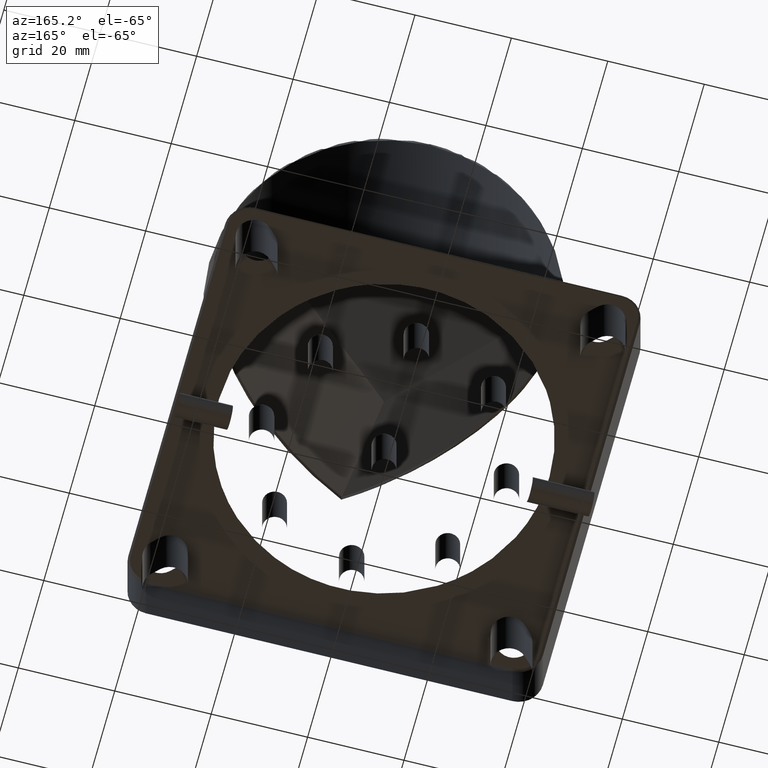
[diagram: clean part render]
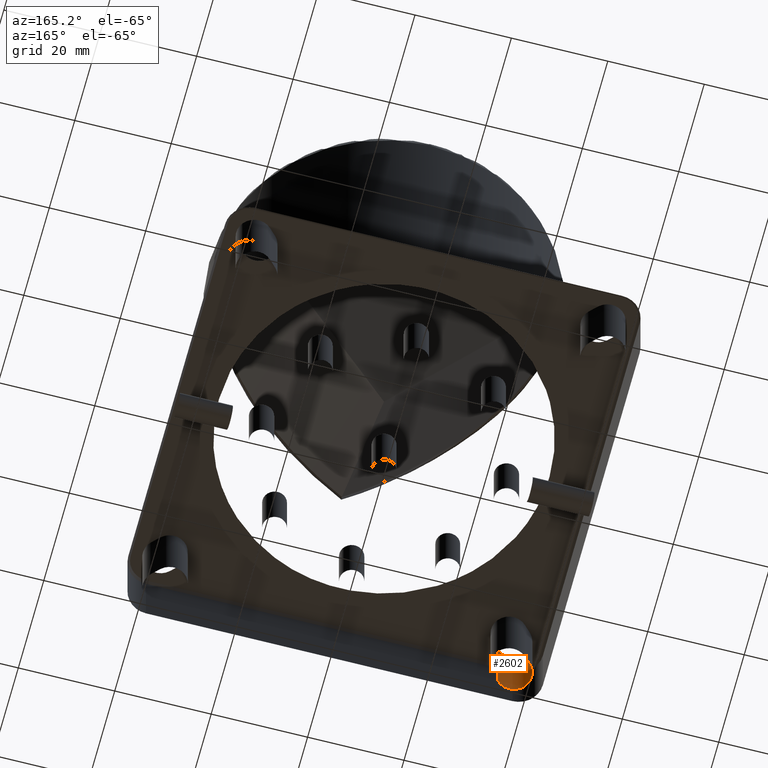
[diagram: same view with one face highlighted and labeled with its STEP entity id]
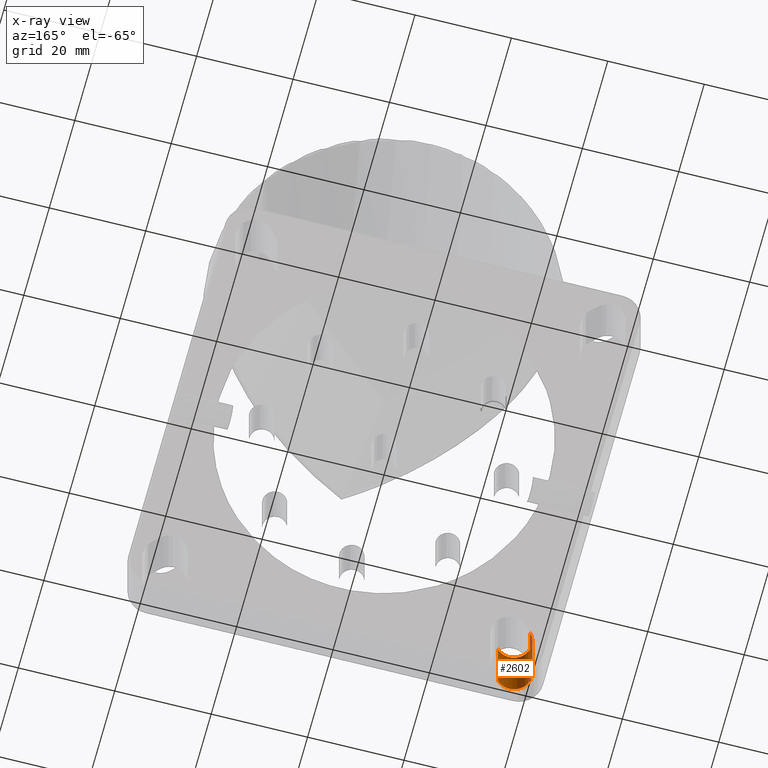
[diagram: x-ray of the same camera — body ghosted, the highlighted face saturated]
A machine part, auxiliary view. The second image highlights one B-rep face of the part: STEP entity #2602.
The next image is the same camera in x-ray: the body ghosted, the highlighted face saturated — about 0% of this face is hidden behind the body in this view.
In plain terms, the highlighted cylindrical surface (edge-blend (fillet) strip) has radius 3.7 mm, axis along (0, 0, -1).
Its self-contained STEP definition (entity closure, byte-faithful):
#168 = ORIENTED_EDGE ( 'NONE', *, *, #3115, .F. ) ;
#192 = ORIENTED_EDGE ( 'NONE', *, *, #864, .T. ) ;
#269 = VERTEX_POINT ( 'NONE', #1559 ) ;
#286 = DIRECTION ( 'NONE',  ( 0.000000000000000000, 0.000000000000000000, -1.000000000000000000 ) ) ;
#392 = DIRECTION ( 'NONE',  ( -1.000000000000000000, 0.000000000000000000, 0.000000000000000000 ) ) ;
#458 = VECTOR ( 'NONE', #960, 1000.000000000000000 ) ;
#554 = VERTEX_POINT ( 'NONE', #1444 ) ;
#642 = EDGE_LOOP ( 'NONE', ( #2071, #192, #168, #3360 ) ) ;
#693 = DIRECTION ( 'NONE',  ( 0.000000000000000000, 0.000000000000000000, -1.000000000000000000 ) ) ;
#834 = CIRCLE ( 'NONE', #3203, 3.700000000000001954 ) ;
#841 = VERTEX_POINT ( 'NONE', #1571 ) ;
#864 = EDGE_CURVE ( 'NONE', #269, #2684, #2107, .T. ) ;
#929 = CARTESIAN_POINT ( 'NONE',  ( -34.01183617507334844, -39.24442635585303663, 20.00000000000000000 ) ) ;
#960 = DIRECTION ( 'NONE',  ( 0.000000000000000000, -0.000000000000000000, -1.000000000000000000 ) ) ;
#961 = CARTESIAN_POINT ( 'NONE',  ( -36.62813126546355136, -36.62813126546277687, 0.000000000000000000 ) ) ;
#1098 = EDGE_CURVE ( 'NONE', #269, #841, #2778, .T. ) ;
#1215 = AXIS2_PLACEMENT_3D ( 'NONE', #2676, #286, #3143 ) ;
#1322 = AXIS2_PLACEMENT_3D ( 'NONE', #1448, #3064, #392 ) ;
#1444 = CARTESIAN_POINT ( 'NONE',  ( -39.24442635585374717, -34.01183617507251711, 0.000000000000000000 ) ) ;
#1448 = CARTESIAN_POINT ( 'NONE',  ( -36.62813126546355136, -36.62813126546277687, 20.00000000000000000 ) ) ;
#1559 = CARTESIAN_POINT ( 'NONE',  ( -34.01183617507334844, -39.24442635585304373, 15.00000000000000000 ) ) ;
#1571 = CARTESIAN_POINT ( 'NONE',  ( -34.01183617507334134, -39.24442635585304373, -2.602085213965210642E-15 ) ) ;
#2009 = CYLINDRICAL_SURFACE ( 'NONE', #1322, 3.700000000000001954 ) ;
#2071 = ORIENTED_EDGE ( 'NONE', *, *, #1098, .F. ) ;
#2107 = CIRCLE ( 'NONE', #1215, 3.700000000000001954 ) ;
#2214 = EDGE_CURVE ( 'NONE', #841, #554, #834, .T. ) ;
#2537 = DIRECTION ( 'NONE',  ( -1.000000000000000000, 0.000000000000000000, 0.000000000000000000 ) ) ;
#2602 = ADVANCED_FACE ( 'NONE', ( #3322 ), #2009, .T. ) ;
#2676 = CARTESIAN_POINT ( 'NONE',  ( -36.62813126546355136, -36.62813126546277687, 15.00000000000000000 ) ) ;
#2684 = VERTEX_POINT ( 'NONE', #2820 ) ;
#2693 = VECTOR ( 'NONE', #3009, 1000.000000000000000 ) ;
#2778 = LINE ( 'NONE', #929, #458 ) ;
#2820 = CARTESIAN_POINT ( 'NONE',  ( -39.24442635585374006, -34.01183617507251711, 15.00000000000000000 ) ) ;
#3009 = DIRECTION ( 'NONE',  ( 0.000000000000000000, 0.000000000000000000, 1.000000000000000000 ) ) ;
#3061 = CARTESIAN_POINT ( 'NONE',  ( -39.24442635585374006, -34.01183617507251000, 20.00000000000000000 ) ) ;
#3064 = DIRECTION ( 'NONE',  ( 0.000000000000000000, 0.000000000000000000, -1.000000000000000000 ) ) ;
#3115 = EDGE_CURVE ( 'NONE', #554, #2684, #3249, .T. ) ;
#3143 = DIRECTION ( 'NONE',  ( -1.000000000000000000, 0.000000000000000000, 0.000000000000000000 ) ) ;
#3203 = AXIS2_PLACEMENT_3D ( 'NONE', #961, #693, #2537 ) ;
#3249 = LINE ( 'NONE', #3061, #2693 ) ;
#3322 = FACE_OUTER_BOUND ( 'NONE', #642, .T. ) ;
#3360 = ORIENTED_EDGE ( 'NONE', *, *, #2214, .F. ) ;